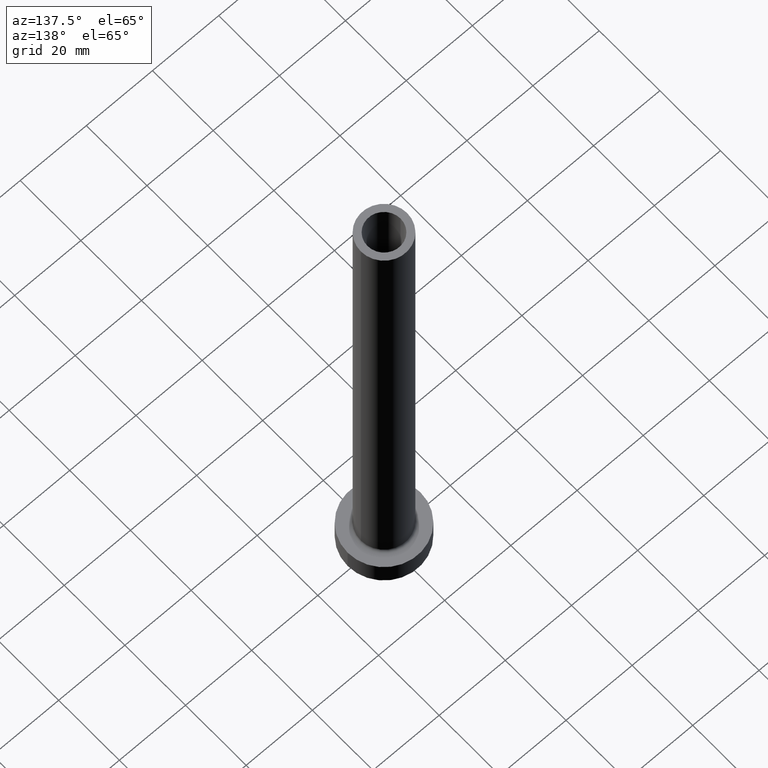
[diagram: clean part render]
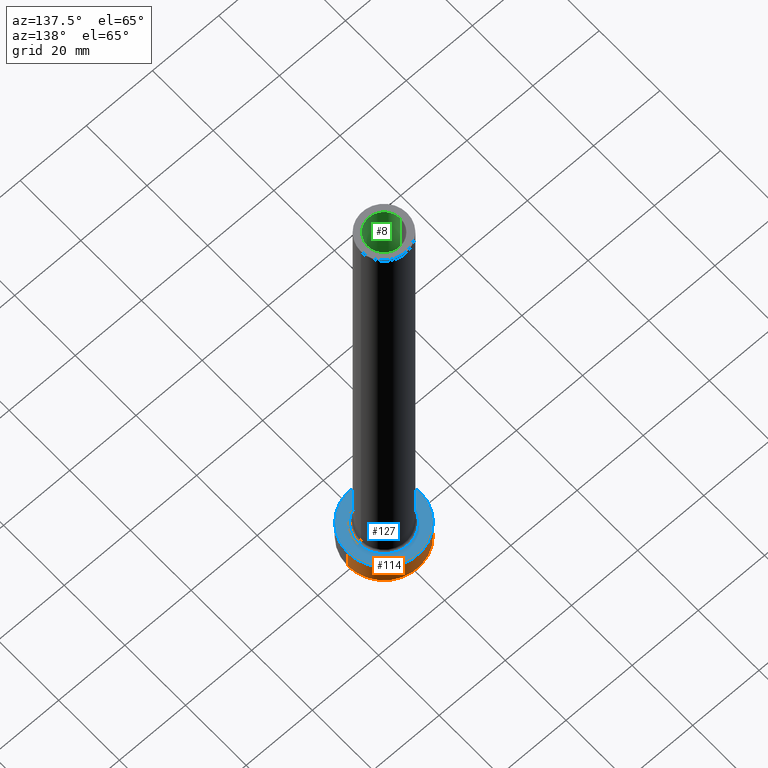
[diagram: same view with three faces highlighted in distinct colors, each labeled with its STEP entity id]
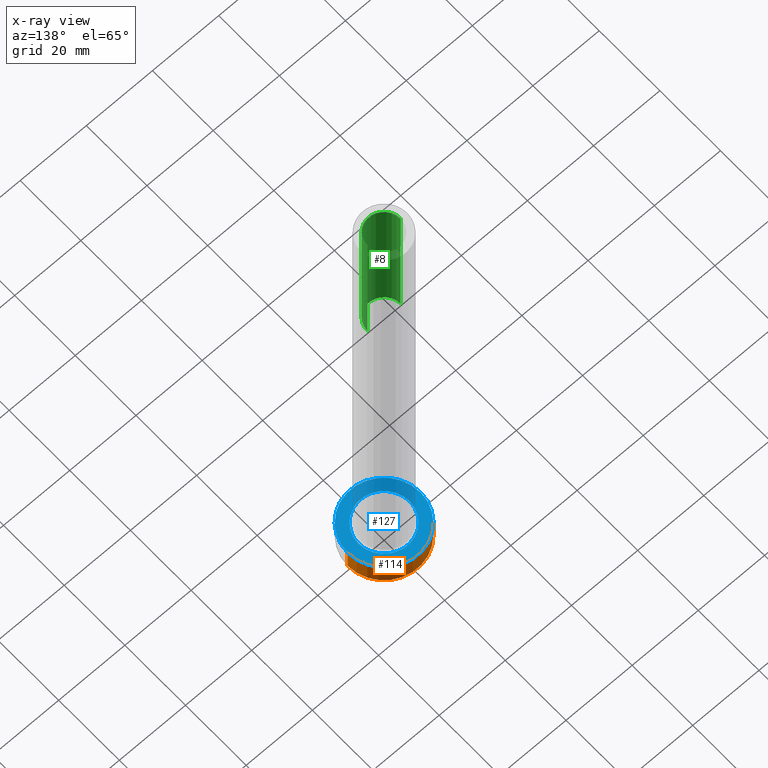
[diagram: x-ray of the same camera — body ghosted, the three highlighted faces saturated]
A machine part, auxiliary view with three faces highlighted in distinct colors.
The next image is the same camera in x-ray (body ghosted, the three faces saturated) — at least one of them is partly hidden behind the body in this view.
Their STEP definitions:

[orange] entity #114 — the highlighted cylindrical surface (partial cylindrical patch) has radius 11 mm, axis along (-0, -0, -1).
#25 = AXIS2_PLACEMENT_3D ( 'NONE', #270, #225, #154 ) ;
#40 = CARTESIAN_POINT ( 'NONE',  ( 11.00000000000000000, 1.347111479062088405E-15, 7.000000000000000000 ) ) ;
#49 = DIRECTION ( 'NONE',  ( 0.000000000000000000, 0.000000000000000000, 1.000000000000000000 ) ) ;
#63 = EDGE_LOOP ( 'NONE', ( #265, #324, #216, #113 ) ) ;
#74 = DIRECTION ( 'NONE',  ( 1.000000000000000000, 0.000000000000000000, 0.000000000000000000 ) ) ;
#78 = CARTESIAN_POINT ( 'NONE',  ( -11.00000000000000000, 0.000000000000000000, 7.000000000000000000 ) ) ;
#86 = DIRECTION ( 'NONE',  ( -0.000000000000000000, -0.000000000000000000, -1.000000000000000000 ) ) ;
#91 = DIRECTION ( 'NONE',  ( -0.000000000000000000, -0.000000000000000000, -1.000000000000000000 ) ) ;
#109 = VERTEX_POINT ( 'NONE', #315 ) ;
#113 = ORIENTED_EDGE ( 'NONE', *, *, #342, .F. ) ;
#114 = ADVANCED_FACE ( 'NONE', ( #350 ), #128, .T. ) ;
#119 = VERTEX_POINT ( 'NONE', #412 ) ;
#128 = CYLINDRICAL_SURFACE ( 'NONE', #138, 11.00000000000000000 ) ;
#135 = AXIS2_PLACEMENT_3D ( 'NONE', #242, #49, #74 ) ;
#138 = AXIS2_PLACEMENT_3D ( 'NONE', #421, #91, #236 ) ;
#145 = LINE ( 'NONE', #422, #340 ) ;
#154 = DIRECTION ( 'NONE',  ( 1.000000000000000000, 0.000000000000000000, 0.000000000000000000 ) ) ;
#202 = DIRECTION ( 'NONE',  ( -0.000000000000000000, -0.000000000000000000, -1.000000000000000000 ) ) ;
#209 = CIRCLE ( 'NONE', #135, 11.00000000000000000 ) ;
#216 = ORIENTED_EDGE ( 'NONE', *, *, #355, .T. ) ;
#222 = VERTEX_POINT ( 'NONE', #380 ) ;
#225 = DIRECTION ( 'NONE',  ( 0.000000000000000000, 0.000000000000000000, 1.000000000000000000 ) ) ;
#236 = DIRECTION ( 'NONE',  ( -1.000000000000000000, 0.000000000000000000, 0.000000000000000000 ) ) ;
#238 = VECTOR ( 'NONE', #86, 1000.000000000000000 ) ;
#241 = VERTEX_POINT ( 'NONE', #78 ) ;
#242 = CARTESIAN_POINT ( 'NONE',  ( 0.000000000000000000, 0.000000000000000000, 0.000000000000000000 ) ) ;
#256 = CIRCLE ( 'NONE', #25, 11.00000000000000000 ) ;
#265 = ORIENTED_EDGE ( 'NONE', *, *, #368, .F. ) ;
#270 = CARTESIAN_POINT ( 'NONE',  ( 0.000000000000000000, 0.000000000000000000, 7.000000000000000000 ) ) ;
#315 = CARTESIAN_POINT ( 'NONE',  ( 11.00000000000000000, 1.347111479062088405E-15, 7.000000000000000000 ) ) ;
#324 = ORIENTED_EDGE ( 'NONE', *, *, #348, .T. ) ;
#340 = VECTOR ( 'NONE', #202, 1000.000000000000000 ) ;
#342 = EDGE_CURVE ( 'NONE', #241, #222, #145, .T. ) ;
#348 = EDGE_CURVE ( 'NONE', #109, #119, #439, .T. ) ;
#350 = FACE_OUTER_BOUND ( 'NONE', #63, .T. ) ;
#355 = EDGE_CURVE ( 'NONE', #119, #222, #209, .T. ) ;
#368 = EDGE_CURVE ( 'NONE', #109, #241, #256, .T. ) ;
#380 = CARTESIAN_POINT ( 'NONE',  ( -11.00000000000000000, 0.000000000000000000, 0.000000000000000000 ) ) ;
#412 = CARTESIAN_POINT ( 'NONE',  ( 11.00000000000000000, 1.347111479062088405E-15, 0.000000000000000000 ) ) ;
#421 = CARTESIAN_POINT ( 'NONE',  ( 0.000000000000000000, 0.000000000000000000, 7.000000000000000000 ) ) ;
#422 = CARTESIAN_POINT ( 'NONE',  ( -11.00000000000000000, 0.000000000000000000, 7.000000000000000000 ) ) ;
#439 = LINE ( 'NONE', #40, #238 ) ;

[blue] entity #127 — the highlighted planar face has unit normal (0, 0, 1).
#7 = FACE_OUTER_BOUND ( 'NONE', #450, .T. ) ;
#17 = CARTESIAN_POINT ( 'NONE',  ( -7.700000000000001066, 9.429780353434621002E-16, 7.000000000000006217 ) ) ;
#25 = AXIS2_PLACEMENT_3D ( 'NONE', #270, #225, #154 ) ;
#32 = CIRCLE ( 'NONE', #366, 7.700000000000001066 ) ;
#56 = CARTESIAN_POINT ( 'NONE',  ( 7.700000000000001066, 0.000000000000000000, 7.000000000000006217 ) ) ;
#58 = ORIENTED_EDGE ( 'NONE', *, *, #427, .T. ) ;
#69 = CARTESIAN_POINT ( 'NONE',  ( 0.000000000000000000, 0.000000000000000000, 7.000000000000000000 ) ) ;
#78 = CARTESIAN_POINT ( 'NONE',  ( -11.00000000000000000, 0.000000000000000000, 7.000000000000000000 ) ) ;
#95 = ORIENTED_EDGE ( 'NONE', *, *, #368, .T. ) ;
#100 = CARTESIAN_POINT ( 'NONE',  ( 0.000000000000000000, 0.000000000000000000, 7.000000000000000000 ) ) ;
#104 = VERTEX_POINT ( 'NONE', #56 ) ;
#109 = VERTEX_POINT ( 'NONE', #315 ) ;
#127 = ADVANCED_FACE ( 'NONE', ( #336, #7 ), #403, .T. ) ;
#130 = CIRCLE ( 'NONE', #267, 11.00000000000000000 ) ;
#154 = DIRECTION ( 'NONE',  ( 1.000000000000000000, 0.000000000000000000, 0.000000000000000000 ) ) ;
#158 = AXIS2_PLACEMENT_3D ( 'NONE', #461, #326, #322 ) ;
#165 = DIRECTION ( 'NONE',  ( 1.000000000000000000, 0.000000000000000000, -0.000000000000000000 ) ) ;
#176 = DIRECTION ( 'NONE',  ( 1.000000000000000000, 0.000000000000000000, 0.000000000000000000 ) ) ;
#186 = DIRECTION ( 'NONE',  ( 0.000000000000000000, 0.000000000000000000, 1.000000000000000000 ) ) ;
#213 = CARTESIAN_POINT ( 'NONE',  ( 0.000000000000000000, 0.000000000000000000, 7.000000000000000000 ) ) ;
#215 = EDGE_CURVE ( 'NONE', #241, #109, #130, .T. ) ;
#225 = DIRECTION ( 'NONE',  ( 0.000000000000000000, 0.000000000000000000, 1.000000000000000000 ) ) ;
#241 = VERTEX_POINT ( 'NONE', #78 ) ;
#248 = DIRECTION ( 'NONE',  ( 1.000000000000000000, 0.000000000000000000, 0.000000000000000000 ) ) ;
#256 = CIRCLE ( 'NONE', #25, 11.00000000000000000 ) ;
#260 = EDGE_LOOP ( 'NONE', ( #58, #371 ) ) ;
#267 = AXIS2_PLACEMENT_3D ( 'NONE', #213, #361, #176 ) ;
#270 = CARTESIAN_POINT ( 'NONE',  ( 0.000000000000000000, 0.000000000000000000, 7.000000000000000000 ) ) ;
#313 = ORIENTED_EDGE ( 'NONE', *, *, #215, .T. ) ;
#315 = CARTESIAN_POINT ( 'NONE',  ( 11.00000000000000000, 1.347111479062088405E-15, 7.000000000000000000 ) ) ;
#320 = DIRECTION ( 'NONE',  ( -0.000000000000000000, -0.000000000000000000, -1.000000000000000000 ) ) ;
#322 = DIRECTION ( 'NONE',  ( 1.000000000000000000, 0.000000000000000000, 0.000000000000000000 ) ) ;
#326 = DIRECTION ( 'NONE',  ( -0.000000000000000000, -0.000000000000000000, -1.000000000000000000 ) ) ;
#330 = AXIS2_PLACEMENT_3D ( 'NONE', #69, #186, #165 ) ;
#336 = FACE_BOUND ( 'NONE', #260, .T. ) ;
#361 = DIRECTION ( 'NONE',  ( 0.000000000000000000, 0.000000000000000000, 1.000000000000000000 ) ) ;
#365 = VERTEX_POINT ( 'NONE', #17 ) ;
#366 = AXIS2_PLACEMENT_3D ( 'NONE', #100, #320, #248 ) ;
#368 = EDGE_CURVE ( 'NONE', #109, #241, #256, .T. ) ;
#371 = ORIENTED_EDGE ( 'NONE', *, *, #420, .T. ) ;
#376 = CIRCLE ( 'NONE', #158, 7.700000000000001066 ) ;
#403 = PLANE ( 'NONE',  #330 ) ;
#420 = EDGE_CURVE ( 'NONE', #365, #104, #32, .T. ) ;
#427 = EDGE_CURVE ( 'NONE', #104, #365, #376, .T. ) ;
#450 = EDGE_LOOP ( 'NONE', ( #313, #95 ) ) ;
#461 = CARTESIAN_POINT ( 'NONE',  ( 0.000000000000000000, 0.000000000000000000, 7.000000000000000000 ) ) ;

[green] entity #8 — the highlighted cylindrical surface (edge-blend (fillet) strip) has radius 5 mm, axis along (0, 0, -1).
#8 = ADVANCED_FACE ( 'NONE', ( #278 ), #282, .F. ) ;
#22 = DIRECTION ( 'NONE',  ( 1.000000000000000000, 0.000000000000000000, 0.000000000000000000 ) ) ;
#31 = LINE ( 'NONE', #399, #66 ) ;
#45 = ORIENTED_EDGE ( 'NONE', *, *, #255, .T. ) ;
#66 = VECTOR ( 'NONE', #175, 1000.000000000000000 ) ;
#71 = AXIS2_PLACEMENT_3D ( 'NONE', #373, #417, #418 ) ;
#73 = VERTEX_POINT ( 'NONE', #247 ) ;
#93 = CARTESIAN_POINT ( 'NONE',  ( 0.000000000000000000, 0.000000000000000000, 115.0000000000000000 ) ) ;
#107 = CARTESIAN_POINT ( 'NONE',  ( -5.000000000000000000, 0.000000000000000000, 115.0000000000000000 ) ) ;
#116 = EDGE_CURVE ( 'NONE', #219, #305, #358, .T. ) ;
#129 = ORIENTED_EDGE ( 'NONE', *, *, #328, .T. ) ;
#159 = VERTEX_POINT ( 'NONE', #385 ) ;
#175 = DIRECTION ( 'NONE',  ( 0.000000000000000000, 0.000000000000000000, -1.000000000000000000 ) ) ;
#207 = EDGE_CURVE ( 'NONE', #159, #219, #31, .T. ) ;
#219 = VERTEX_POINT ( 'NONE', #107 ) ;
#221 = DIRECTION ( 'NONE',  ( 0.000000000000000000, 0.000000000000000000, -1.000000000000000000 ) ) ;
#235 = CARTESIAN_POINT ( 'NONE',  ( 0.000000000000000000, 0.000000000000000000, 160.0000000000000000 ) ) ;
#247 = CARTESIAN_POINT ( 'NONE',  ( 5.000000000000000000, 6.123233995736765296E-16, 160.0000000000000000 ) ) ;
#253 = VECTOR ( 'NONE', #221, 1000.000000000000000 ) ;
#255 = EDGE_CURVE ( 'NONE', #73, #305, #377, .T. ) ;
#278 = FACE_OUTER_BOUND ( 'NONE', #430, .T. ) ;
#282 = CYLINDRICAL_SURFACE ( 'NONE', #71, 5.000000000000000000 ) ;
#305 = VERTEX_POINT ( 'NONE', #423 ) ;
#306 = CARTESIAN_POINT ( 'NONE',  ( 5.000000000000000000, 6.123233995736765296E-16, 160.0000000000000000 ) ) ;
#328 = EDGE_CURVE ( 'NONE', #159, #73, #409, .T. ) ;
#331 = ORIENTED_EDGE ( 'NONE', *, *, #116, .F. ) ;
#343 = ORIENTED_EDGE ( 'NONE', *, *, #207, .F. ) ;
#349 = DIRECTION ( 'NONE',  ( 0.000000000000000000, 0.000000000000000000, 1.000000000000000000 ) ) ;
#353 = DIRECTION ( 'NONE',  ( 0.000000000000000000, 0.000000000000000000, 1.000000000000000000 ) ) ;
#358 = CIRCLE ( 'NONE', #382, 5.000000000000000000 ) ;
#373 = CARTESIAN_POINT ( 'NONE',  ( 0.000000000000000000, 0.000000000000000000, 160.0000000000000000 ) ) ;
#377 = LINE ( 'NONE', #306, #253 ) ;
#382 = AXIS2_PLACEMENT_3D ( 'NONE', #93, #353, #384 ) ;
#384 = DIRECTION ( 'NONE',  ( 1.000000000000000000, 0.000000000000000000, 0.000000000000000000 ) ) ;
#385 = CARTESIAN_POINT ( 'NONE',  ( -5.000000000000000000, 0.000000000000000000, 160.0000000000000000 ) ) ;
#399 = CARTESIAN_POINT ( 'NONE',  ( -5.000000000000000000, 0.000000000000000000, 160.0000000000000000 ) ) ;
#409 = CIRCLE ( 'NONE', #458, 5.000000000000000000 ) ;
#417 = DIRECTION ( 'NONE',  ( 0.000000000000000000, 0.000000000000000000, -1.000000000000000000 ) ) ;
#418 = DIRECTION ( 'NONE',  ( -1.000000000000000000, 0.000000000000000000, 0.000000000000000000 ) ) ;
#423 = CARTESIAN_POINT ( 'NONE',  ( 5.000000000000000000, 6.123233995736765296E-16, 115.0000000000000000 ) ) ;
#430 = EDGE_LOOP ( 'NONE', ( #129, #45, #331, #343 ) ) ;
#458 = AXIS2_PLACEMENT_3D ( 'NONE', #235, #349, #22 ) ;